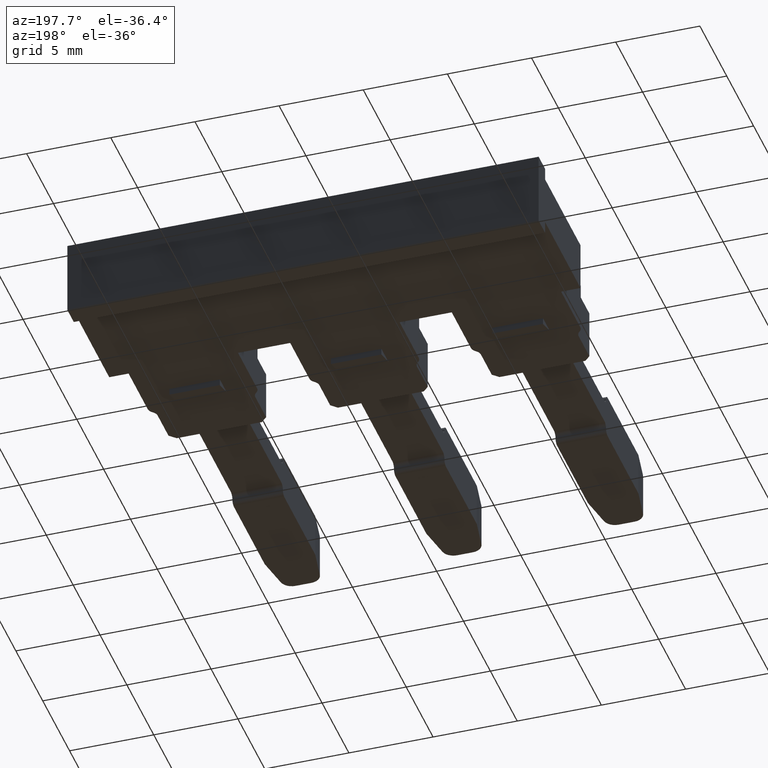
[diagram: clean part render]
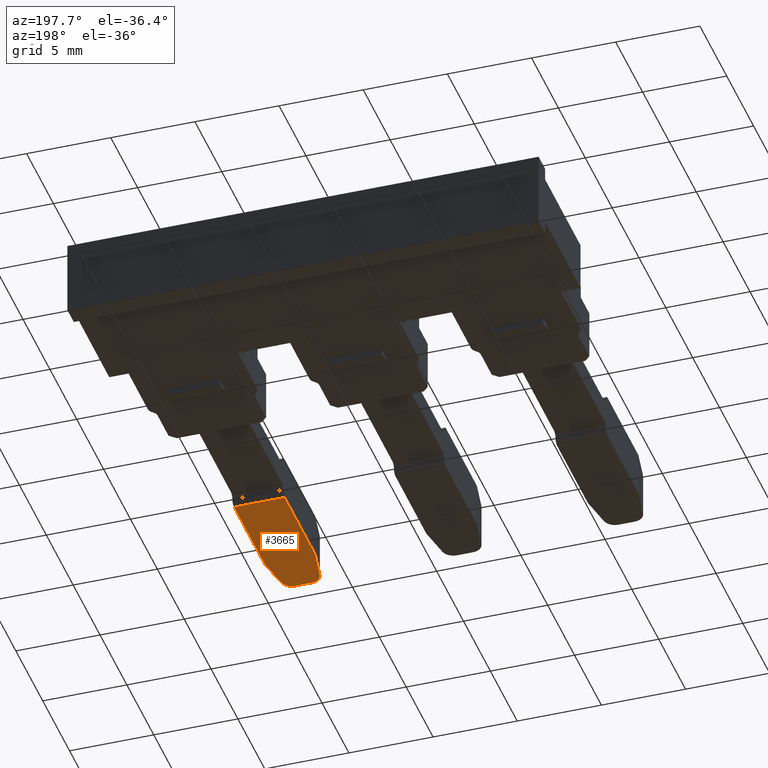
[diagram: same view with one face highlighted and labeled with its STEP entity id]
A machine part, auxiliary view. The second image highlights one B-rep face of the part: STEP entity #3665.
In plain terms, the highlighted planar face has unit normal (0, -0, -1).
Its self-contained STEP definition (entity closure, byte-faithful):
#195 = CARTESIAN_POINT ( 'NONE',  ( 1154.694449230039300, 646.6283161340936700, 0.1522013187403555300 ) ) ;
#209 = CARTESIAN_POINT ( 'NONE',  ( 1152.033259543838800, 644.7067378249283800, 0.1522013187405768000 ) ) ;
#217 = CARTESIAN_POINT ( 'NONE',  ( 1154.355614559367000, 644.7067378249282700, 0.1522013187407039700 ) ) ;
#224 = CARTESIAN_POINT ( 'NONE',  ( 1154.694445129791600, 652.3527367076611700, 0.1522013187355868400 ) ) ;
#237 = CARTESIAN_POINT ( 'NONE',  ( 1151.694434011691100, 652.3527719075040100, 0.1522013187405798500 ) ) ;
#245 = CARTESIAN_POINT ( 'NONE',  ( 1152.722625005874100, 644.1282913512167200, 0.1522013187406196800 ) ) ;
#341 = CARTESIAN_POINT ( 'NONE',  ( 1153.666249097331700, 644.1282913512167200, 0.1522013187406496500 ) ) ;
#346 = CARTESIAN_POINT ( 'NONE',  ( 1151.694434011691100, 646.6283161340937800, 0.1522013187405634200 ) ) ;
#509 = PLANE ( 'NONE',  #3349 ) ;
#517 = DIRECTION ( 'NONE',  ( -1.000000000000000000, 0.0000000000000000000, -5.364441115334514400E-014 ) ) ;
#532 = FACE_OUTER_BOUND ( 'NONE', #2678, .T. ) ;
#533 = CARTESIAN_POINT ( 'NONE',  ( 1155.694434382171500, 641.5303140484550100, 0.1522013187407783600 ) ) ;
#537 = DIRECTION ( 'NONE',  ( 5.364441115334514400E-014, -1.058364141383339600E-023, -1.000000000000000000 ) ) ;
#1393 = CARTESIAN_POINT ( 'NONE',  ( 1153.666249097331700, 644.1282913512167200, 0.1522013187406496500 ) ) ;
#1396 = CARTESIAN_POINT ( 'NONE',  ( 1153.829146527706800, 644.1282913512167200, 0.1522013187406513800 ) ) ;
#1398 = CARTESIAN_POINT ( 'NONE',  ( 1153.991413844856900, 644.1873518378542900, 0.1522013187406601200 ) ) ;
#1401 = CARTESIAN_POINT ( 'NONE',  ( 1154.240987157445000, 644.3967687734991600, 0.1522013187406734400 ) ) ;
#1402 = CARTESIAN_POINT ( 'NONE',  ( 1154.327327763530500, 644.5463151644213400, 0.1522013187406780800 ) ) ;
#1416 = LINE ( 'NONE', #1435, #3160 ) ;
#1435 = CARTESIAN_POINT ( 'NONE',  ( 1151.694434011691100, 652.6527719075244200, 0.1522013187405632500 ) ) ;
#1448 = DIRECTION ( 'NONE',  ( 0.0000000000000000000, 1.000000000000000000, 0.0000000000000000000 ) ) ;
#1476 = CARTESIAN_POINT ( 'NONE',  ( 1154.355614559367000, 644.7067378249282700, 0.1522013187407039700 ) ) ;
#1477 = CARTESIAN_POINT ( 'NONE',  ( 1144.807395039572600, 644.1282913512167200, 0.1522013187406430500 ) ) ;
#1515 = LINE ( 'NONE', #1477, #3225 ) ;
#1516 = DIRECTION ( 'NONE',  ( -1.000000000000000000, 1.720418656508634100E-014, 0.0000000000000000000 ) ) ;
#1538 = LINE ( 'NONE', #1556, #3189 ) ;
#1552 = DIRECTION ( 'NONE',  ( -0.1736478946976646700, 0.9848078029072824300, -9.321079137593324000E-015 ) ) ;
#1556 = CARTESIAN_POINT ( 'NONE',  ( 1152.033259543838800, 644.7067378249283800, 0.1522013187405819300 ) ) ;
#1573 = LINE ( 'NONE', #1614, #3204 ) ;
#1578 = LINE ( 'NONE', #1585, #3224 ) ;
#1585 = CARTESIAN_POINT ( 'NONE',  ( 1154.694449230035600, 646.6283210584171000, 0.1522013187407240700 ) ) ;
#1604 = DIRECTION ( 'NONE',  ( -7.162729585980651700E-007, 0.9999999999997434300, -8.974220355951169400E-013 ) ) ;
#1614 = CARTESIAN_POINT ( 'NONE',  ( 1154.694440091514700, 646.6283161340935500, 0.1522013187407247100 ) ) ;
#1618 = DIRECTION ( 'NONE',  ( -0.1736478946976743900, -0.9848078029072806500, -9.321079137593844600E-015 ) ) ;
#1629 = CARTESIAN_POINT ( 'NONE',  ( 1152.722625005874100, 644.1282913512167200, 0.1522013187406196800 ) ) ;
#1635 = CARTESIAN_POINT ( 'NONE',  ( 1152.559727575498500, 644.1282913512168300, 0.1522013187405992200 ) ) ;
#1637 = CARTESIAN_POINT ( 'NONE',  ( 1152.147886945760300, 644.3967687734993900, 0.1522013187405771600 ) ) ;
#1641 = CARTESIAN_POINT ( 'NONE',  ( 1152.061546339675000, 644.5463151644213400, 0.1522013187405724700 ) ) ;
#1642 = CARTESIAN_POINT ( 'NONE',  ( 1152.397460258348500, 644.1873518378538400, 0.1522013187405904800 ) ) ;
#1652 = CARTESIAN_POINT ( 'NONE',  ( 1152.033259543838800, 644.7067378249283800, 0.1522013187405768000 ) ) ;
#1671 = LINE ( 'NONE', #1686, #3200 ) ;
#1680 = DIRECTION ( 'NONE',  ( 0.9999999999311652800, -1.173325889926041300E-005, 5.364982877096552300E-014 ) ) ;
#1686 = CARTESIAN_POINT ( 'NONE',  ( 1151.694434011691100, 652.3527719075040100, 0.1522013187405637500 ) ) ;
#2201 = ORIENTED_EDGE ( 'NONE', *, *, #3974, .F. ) ;
#2207 = ORIENTED_EDGE ( 'NONE', *, *, #4051, .T. ) ;
#2225 = ORIENTED_EDGE ( 'NONE', *, *, #4009, .T. ) ;
#2246 = ORIENTED_EDGE ( 'NONE', *, *, #3978, .T. ) ;
#2249 = ORIENTED_EDGE ( 'NONE', *, *, #4038, .F. ) ;
#2261 = ORIENTED_EDGE ( 'NONE', *, *, #4031, .T. ) ;
#2323 = VERTEX_POINT ( 'NONE', #195 ) ;
#2330 = VERTEX_POINT ( 'NONE', #224 ) ;
#2369 = VERTEX_POINT ( 'NONE', #237 ) ;
#2375 = VERTEX_POINT ( 'NONE', #217 ) ;
#2379 = VERTEX_POINT ( 'NONE', #209 ) ;
#2380 = VERTEX_POINT ( 'NONE', #245 ) ;
#2513 = VERTEX_POINT ( 'NONE', #341 ) ;
#2514 = VERTEX_POINT ( 'NONE', #346 ) ;
#2678 = EDGE_LOOP ( 'NONE', ( #3016, #2261, #2201, #3017, #2249, #2225, #2246, #2207 ) ) ;
#3016 = ORIENTED_EDGE ( 'NONE', *, *, #4020, .F. ) ;
#3017 = ORIENTED_EDGE ( 'NONE', *, *, #3995, .T. ) ;
#3160 = VECTOR ( 'NONE', #1448, 1000.000000000000000 ) ;
#3189 = VECTOR ( 'NONE', #1552, 1000.000000000000100 ) ;
#3200 = VECTOR ( 'NONE', #1680, 1000.000000000000100 ) ;
#3204 = VECTOR ( 'NONE', #1618, 1000.000000000000100 ) ;
#3224 = VECTOR ( 'NONE', #1604, 1000.000000000000100 ) ;
#3225 = VECTOR ( 'NONE', #1516, 1000.000000000000000 ) ;
#3349 = AXIS2_PLACEMENT_3D ( 'NONE', #533, #537, #517 ) ;
#3665 = ADVANCED_FACE ( 'NONE', ( #532 ), #509, .T. ) ;
#3974 = EDGE_CURVE ( 'NONE', #2513, #2375, #4093, .T. ) ;
#3978 = EDGE_CURVE ( 'NONE', #2514, #2369, #1416, .T. ) ;
#3995 = EDGE_CURVE ( 'NONE', #2513, #2380, #1515, .T. ) ;
#4009 = EDGE_CURVE ( 'NONE', #2379, #2514, #1538, .T. ) ;
#4020 = EDGE_CURVE ( 'NONE', #2323, #2330, #1578, .T. ) ;
#4031 = EDGE_CURVE ( 'NONE', #2323, #2375, #1573, .T. ) ;
#4038 = EDGE_CURVE ( 'NONE', #2379, #2380, #4098, .T. ) ;
#4051 = EDGE_CURVE ( 'NONE', #2369, #2330, #1671, .T. ) ;
#4093 = B_SPLINE_CURVE_WITH_KNOTS ( 'NONE', 3,
 ( #1393, #1396, #1398, #1401, #1402, #1476 ),
 .UNSPECIFIED., .F., .F.,
 ( 4, 2, 4 ),
 ( 0.0000000000000000000, 0.5000000000000000000, 1.000000000000000000 ),
 .UNSPECIFIED. ) ;
#4098 = B_SPLINE_CURVE_WITH_KNOTS ( 'NONE', 3,
 ( #1652, #1641, #1637, #1642, #1635, #1629 ),
 .UNSPECIFIED., .F., .F.,
 ( 4, 2, 4 ),
 ( 0.0000000000000000000, 0.5000000000000000000, 1.000000000000000000 ),
 .UNSPECIFIED. ) ;